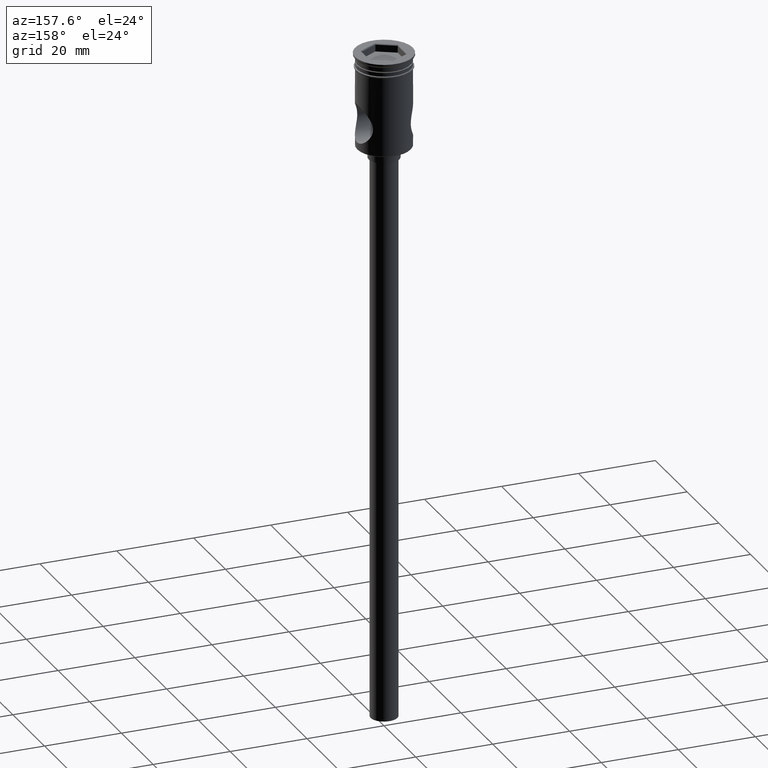
[diagram: clean part render]
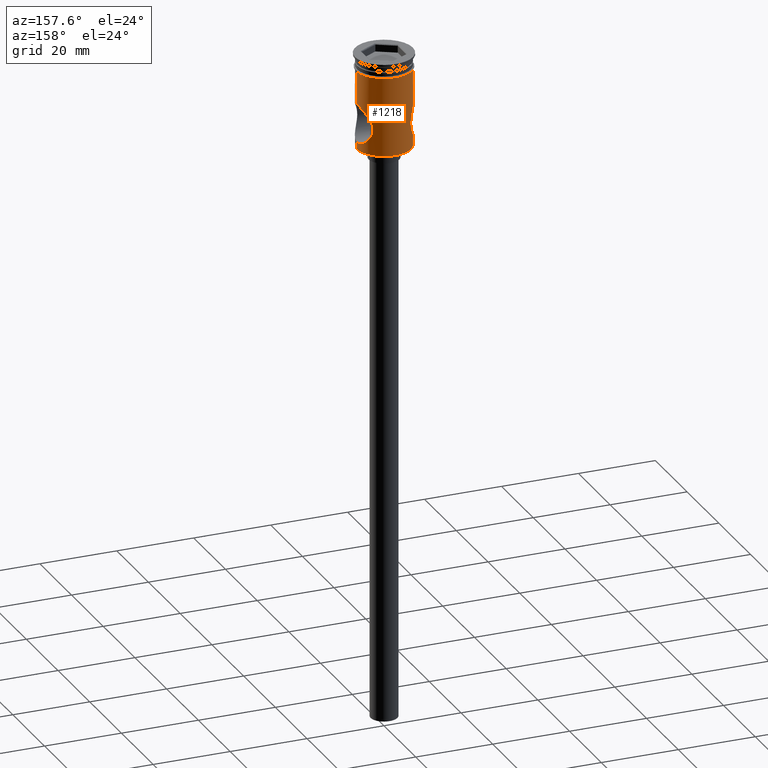
[diagram: same view with one face highlighted and labeled with its STEP entity id]
A machine part, auxiliary view. The second image highlights one B-rep face of the part: STEP entity #1218.
In plain terms, the highlighted cylindrical surface (edge-blend (fillet) strip) has radius 7 mm, axis along (-0, -0, 1).
Its self-contained STEP definition (entity closure, byte-faithful):
#4 = FACE_OUTER_BOUND ( 'NONE', #1489, .T. ) ;
#9 = CARTESIAN_POINT ( 'NONE',  ( 6.999999999999996447, 0.000000000000000000, -24.29999999999999361 ) ) ;
#38 = VERTEX_POINT ( 'NONE', #63 ) ;
#44 = CARTESIAN_POINT ( 'NONE',  ( 5.383875121910168815, 4.476817073581178086, -19.74995831670789670 ) ) ;
#53 = CARTESIAN_POINT ( 'NONE',  ( 4.899085609211874193, 4.999896020448773015, -17.32678303492929217 ) ) ;
#59 = CARTESIAN_POINT ( 'NONE',  ( 5.511313949235637999, 4.316828484673398414, -14.97205977871709415 ) ) ;
#60 = CARTESIAN_POINT ( 'NONE',  ( -5.508043593449563957, 4.325402544629331381, -14.97211645318934004 ) ) ;
#63 = CARTESIAN_POINT ( 'NONE',  ( 6.999999999999996447, -5.559544561199393959E-22, -12.50000000000000000 ) ) ;
#84 = LINE ( 'NONE', #403, #297 ) ;
#102 = CARTESIAN_POINT ( 'NONE',  ( -5.220660888952586731, 4.663868933387905535, -19.30946716320038448 ) ) ;
#110 = CARTESIAN_POINT ( 'NONE',  ( -6.878322084194203434, 1.341499001965813509, -22.32841954660989003 ) ) ;
#120 = CARTESIAN_POINT ( 'NONE',  ( 6.999999999999996447, 0.000000000000000000, 0.000000000000000000 ) ) ;
#129 = CARTESIAN_POINT ( 'NONE',  ( -6.999999999999996447, 8.572527594031468259E-16, 0.000000000000000000 ) ) ;
#137 = CARTESIAN_POINT ( 'NONE',  ( 6.999999999999996447, 0.000000000000000000, -22.50000000000000355 ) ) ;
#139 = ORIENTED_EDGE ( 'NONE', *, *, #478, .F. ) ;
#146 = CARTESIAN_POINT ( 'NONE',  ( 6.629274812495740576, 2.269772407451148055, -21.96723436692712994 ) ) ;
#153 = CARTESIAN_POINT ( 'NONE',  ( -6.999999999999999112, 0.3397238778479505505, -12.50000000000000533 ) ) ;
#170 = CARTESIAN_POINT ( 'NONE',  ( 5.035064757863625395, 4.863162860794926878, -18.67369050689208265 ) ) ;
#176 = CARTESIAN_POINT ( 'NONE',  ( 5.768304064841209389, 3.971660509004134809, -14.44639040140507724 ) ) ;
#184 = CARTESIAN_POINT ( 'NONE',  ( -5.900022963542600252, 3.775732323944060553, -14.20705562262494759 ) ) ;
#185 = B_SPLINE_CURVE_WITH_KNOTS ( 'NONE', 3,
 ( #256, #153, #1179, #500, #357, #1188, #246, #1069, #1104, #506, #277, #184, #535, #60, #410, #402, #1476, #204, #211, #1362, #1391, #338, #1042, #1031, #462, #1370, #102, #431, #1126, #1256, #1240, #698, #567, #191, #1149, #666, #110, #929, #897, #1117 ),
 .UNSPECIFIED., .F., .F.,
 ( 4, 2, 2, 2, 2, 2, 2, 2, 2, 2, 2, 2, 2, 2, 2, 2, 2, 2, 2, 4 ),
 ( 0.01628445435404881486, 0.01730075665134460025, 0.01831705894864038217, 0.01882521009728827660, 0.01933336124593617103, 0.02034966354323195642, 0.02136596584052773834, 0.02238226813782352373, 0.02339857043511930912, 0.02441487273241509451, 0.02492302388106299241, 0.02543117502971088684, 0.02593932617835878474, 0.02644747732700668263, 0.02746377962430248537, 0.02848008192159828811, 0.02949638421889409085, 0.03051268651618989358, 0.03152898881348569632, 0.03254529111078149906 ),
 .UNSPECIFIED. ) ;
#189 = DIRECTION ( 'NONE',  ( -0.000000000000000000, -0.000000000000000000, 1.000000000000000000 ) ) ;
#191 = CARTESIAN_POINT ( 'NONE',  ( -6.525356721813722949, 2.550056080968596373, -21.81267208194016760 ) ) ;
#195 = VERTEX_POINT ( 'NONE', #823 ) ;
#198 = DIRECTION ( 'NONE',  ( -0.000000000000000000, -0.000000000000000000, 1.000000000000000000 ) ) ;
#202 = CARTESIAN_POINT ( 'NONE',  ( 6.999999999999996447, 0.000000000000000000, 0.000000000000000000 ) ) ;
#204 = CARTESIAN_POINT ( 'NONE',  ( -4.934803760294868447, 4.965557229327412614, -16.82386648148100150 ) ) ;
#210 = CARTESIAN_POINT ( 'NONE',  ( -7.000000000000000000, 8.572527594031472204E-16, -3.799999999999998490 ) ) ;
#211 = CARTESIAN_POINT ( 'NONE',  ( -4.898713443770691178, 5.000260666815379729, -17.16047788894091752 ) ) ;
#216 = CARTESIAN_POINT ( 'NONE',  ( 0.000000000000000000, 0.000000000000000000, 0.000000000000000000 ) ) ;
#234 = EDGE_CURVE ( 'NONE', #919, #273, #185, .T. ) ;
#246 = CARTESIAN_POINT ( 'NONE',  ( -6.624517184282109561, 2.266908297124829108, -13.04044276553849002 ) ) ;
#256 = CARTESIAN_POINT ( 'NONE',  ( -6.999999999999996447, 8.572533153570467989E-16, -12.50000000000000000 ) ) ;
#261 = CARTESIAN_POINT ( 'NONE',  ( 5.507665137062537575, 4.325854713192930134, -20.02701862118371778 ) ) ;
#264 = EDGE_CURVE ( 'NONE', #38, #195, #1010, .T. ) ;
#273 = VERTEX_POINT ( 'NONE', #1015 ) ;
#277 = CARTESIAN_POINT ( 'NONE',  ( -6.161707611671310758, 3.331633962589205744, -13.75836233797496533 ) ) ;
#283 = CARTESIAN_POINT ( 'NONE',  ( 4.908080539807011533, 4.991127287266563961, -17.15741302911732546 ) ) ;
#289 = CARTESIAN_POINT ( 'NONE',  ( 6.806176255248581164, 1.666404458266062649, -12.77420545626974224 ) ) ;
#297 = VECTOR ( 'NONE', #991, 1000.000000000000000 ) ;
#321 = CIRCLE ( 'NONE', #1462, 6.999999999999999112 ) ;
#338 = CARTESIAN_POINT ( 'NONE',  ( -4.943863480480452210, 4.955687100658114019, -18.18552340350770891 ) ) ;
#344 = DIRECTION ( 'NONE',  ( -0.000000000000000000, -0.000000000000000000, 1.000000000000000000 ) ) ;
#357 = CARTESIAN_POINT ( 'NONE',  ( -6.806988922152785726, 1.662804102803706163, -12.77304955625404048 ) ) ;
#365 = CARTESIAN_POINT ( 'NONE',  ( 6.974683072853315124, 0.6817536040784990536, -22.46472792027995879 ) ) ;
#384 = CARTESIAN_POINT ( 'NONE',  ( 6.999999999999997335, 0.3402173002877514896, -12.50000000000000178 ) ) ;
#390 = ORIENTED_EDGE ( 'NONE', *, *, #264, .F. ) ;
#402 = CARTESIAN_POINT ( 'NONE',  ( -5.162336326394759922, 4.730545921691760469, -15.84900793347695647 ) ) ;
#403 = CARTESIAN_POINT ( 'NONE',  ( -6.999999999999996447, 8.572527594031468259E-16, 0.000000000000000000 ) ) ;
#410 = CARTESIAN_POINT ( 'NONE',  ( -5.381635726961874866, 4.479484118326246822, -15.25543733555521264 ) ) ;
#414 = CARTESIAN_POINT ( 'NONE',  ( 4.968992574149714514, 4.930653397323763620, -18.34649837096316460 ) ) ;
#431 = CARTESIAN_POINT ( 'NONE',  ( -5.385323867458159164, 4.475062125113562495, -19.75326393182406903 ) ) ;
#435 = DIRECTION ( 'NONE',  ( 1.000000000000000000, 0.000000000000000000, 0.000000000000000000 ) ) ;
#459 = DIRECTION ( 'NONE',  ( -0.000000000000000000, -0.000000000000000000, 1.000000000000000000 ) ) ;
#462 = CARTESIAN_POINT ( 'NONE',  ( -5.077364955457301932, 4.819225539182824924, -18.84248696074795149 ) ) ;
#468 = EDGE_CURVE ( 'NONE', #195, #1137, #321, .T. ) ;
#478 = EDGE_CURVE ( 'NONE', #684, #38, #724, .T. ) ;
#494 = ORIENTED_EDGE ( 'NONE', *, *, #656, .F. ) ;
#499 = CARTESIAN_POINT ( 'NONE',  ( 5.167013818061234609, 4.722976424013229035, -19.14947799901278813 ) ) ;
#500 = CARTESIAN_POINT ( 'NONE',  ( -6.877725454229275392, 1.345421322269137576, -12.67242512543099231 ) ) ;
#506 = CARTESIAN_POINT ( 'NONE',  ( -6.289754092268240449, 3.085829967940952656, -13.55283859579834527 ) ) ;
#512 = CARTESIAN_POINT ( 'NONE',  ( 6.627237468456898206, 2.276106889563763946, -13.03576710784931514 ) ) ;
#520 = CARTESIAN_POINT ( 'NONE',  ( 4.943019484790466045, 4.956528279916297741, -18.17978386182895179 ) ) ;
#535 = CARTESIAN_POINT ( 'NONE',  ( -5.766850669963372589, 3.973799787454027399, -14.44906282454845936 ) ) ;
#567 = CARTESIAN_POINT ( 'NONE',  ( -6.293637646572689093, 3.077855022031981580, -21.45331948693545954 ) ) ;
#588 = CARTESIAN_POINT ( 'NONE',  ( 6.999999999999996447, 0.000000000000000000, -22.50000000000000355 ) ) ;
#611 = ORIENTED_EDGE ( 'NONE', *, *, #1484, .T. ) ;
#612 = CARTESIAN_POINT ( 'NONE',  ( 6.162478002351688744, 3.330174978408510178, -21.24288214826860255 ) ) ;
#618 = CARTESIAN_POINT ( 'NONE',  ( 6.288925692808939871, 3.087718830034457795, -21.44587702701452514 ) ) ;
#637 = CARTESIAN_POINT ( 'NONE',  ( 4.943068801648156985, 4.956478286556077251, -16.82026444464511528 ) ) ;
#643 = CARTESIAN_POINT ( 'NONE',  ( 4.898875233353443548, 5.000102145928885911, -17.66716118737664232 ) ) ;
#652 = CARTESIAN_POINT ( 'NONE',  ( 5.163543367690774488, 4.729261221067855736, -15.84511468902912590 ) ) ;
#656 = EDGE_CURVE ( 'NONE', #1460, #684, #1236, .T. ) ;
#660 = CARTESIAN_POINT ( 'NONE',  ( 6.877389265331919077, 1.346411915329735587, -12.67290639567982424 ) ) ;
#666 = CARTESIAN_POINT ( 'NONE',  ( -6.805936086033878674, 1.666627172151767367, -22.22542051994379975 ) ) ;
#672 = ORIENTED_EDGE ( 'NONE', *, *, #833, .T. ) ;
#684 = VERTEX_POINT ( 'NONE', #137 ) ;
#698 = CARTESIAN_POINT ( 'NONE',  ( -6.165209272184617006, 3.325110483998857003, -21.24734997091469424 ) ) ;
#717 = CARTESIAN_POINT ( 'NONE',  ( 5.901369065369745037, 3.773598239158957757, -20.79532828289721635 ) ) ;
#724 = B_SPLINE_CURVE_WITH_KNOTS ( 'NONE', 3,
 ( #588, #1419, #365, #848, #732, #146, #1291, #618, #612, #717, #1311, #261, #44, #1195, #499, #875, #170, #414, #520, #1094, #643, #53, #283, #637, #1090, #1318, #652, #971, #1438, #59, #1442, #176, #754, #1342, #1347, #1084, #512, #289, #660, #997, #384, #977 ),
 .UNSPECIFIED., .F., .F.,
 ( 4, 2, 2, 2, 2, 2, 2, 2, 2, 2, 2, 2, 2, 2, 2, 2, 2, 2, 2, 2, 4 ),
 ( 0.000000000000000000, 0.001017778397128055699, 0.002035556794256111399, 0.003053335191384167098, 0.004071113588512222797, 0.005088891985640278497, 0.006106670382768334196, 0.006615559581332362479, 0.007124448779896391630, 0.007633337978460419913, 0.008142227177024449064, 0.008651116375588475613, 0.009160005574152505631, 0.01017778397128055352, 0.01068667316984457834, 0.01119556236840860142, 0.01221334076553664411, 0.01323111916266468679, 0.01424889755979273122, 0.01526667595692077217, 0.01628445435404881486 ),
 .UNSPECIFIED. ) ;
#732 = CARTESIAN_POINT ( 'NONE',  ( 6.806291652246979851, 1.665396429013261459, -22.22593952615893897 ) ) ;
#737 = CARTESIAN_POINT ( 'NONE',  ( 0.000000000000000000, 0.000000000000000000, -3.799999999999998490 ) ) ;
#741 = LINE ( 'NONE', #129, #1464 ) ;
#750 = VECTOR ( 'NONE', #198, 1000.000000000000000 ) ;
#752 = VECTOR ( 'NONE', #189, 1000.000000000000000 ) ;
#754 = CARTESIAN_POINT ( 'NONE',  ( 5.901355755354761534, 3.773686748851627915, -14.20466136214932007 ) ) ;
#809 = CYLINDRICAL_SURFACE ( 'NONE', #1332, 6.999999999999996447 ) ;
#823 = CARTESIAN_POINT ( 'NONE',  ( 6.999999999999999112, 0.000000000000000000, -3.799999999999998490 ) ) ;
#833 = EDGE_CURVE ( 'NONE', #1460, #1235, #1281, .T. ) ;
#848 = CARTESIAN_POINT ( 'NONE',  ( 6.878409767648492767, 1.341070845160087455, -22.32854432384573684 ) ) ;
#875 = CARTESIAN_POINT ( 'NONE',  ( 5.075160898063482584, 4.821543316883922792, -18.83416791088078668 ) ) ;
#897 = CARTESIAN_POINT ( 'NONE',  ( -6.999999999999995559, 0.3443248772558980542, -22.50000000000000000 ) ) ;
#911 = CARTESIAN_POINT ( 'NONE',  ( -6.999999999999996447, 8.572527594031468259E-16, -24.29999999999999361 ) ) ;
#919 = VERTEX_POINT ( 'NONE', #926 ) ;
#926 = CARTESIAN_POINT ( 'NONE',  ( -6.999999999999996447, 8.572533153570467989E-16, -12.50000000000000000 ) ) ;
#929 = CARTESIAN_POINT ( 'NONE',  ( -6.974619610468724140, 0.6823602827348922428, -22.46463889269961456 ) ) ;
#966 = DIRECTION ( 'NONE',  ( -0.000000000000000000, -0.000000000000000000, 1.000000000000000000 ) ) ;
#971 = CARTESIAN_POINT ( 'NONE',  ( 5.328862411543377142, 4.539851137495588773, -15.39859786766767336 ) ) ;
#977 = CARTESIAN_POINT ( 'NONE',  ( 6.999999999999996447, -5.559544561199393959E-22, -12.50000000000000000 ) ) ;
#991 = DIRECTION ( 'NONE',  ( -0.000000000000000000, -0.000000000000000000, 1.000000000000000000 ) ) ;
#997 = CARTESIAN_POINT ( 'NONE',  ( 6.974267267734871822, 0.6862246212768641218, -12.53585319719852720 ) ) ;
#1002 = DIRECTION ( 'NONE',  ( -0.000000000000000000, -0.000000000000000000, 1.000000000000000000 ) ) ;
#1010 = LINE ( 'NONE', #120, #750 ) ;
#1014 = ORIENTED_EDGE ( 'NONE', *, *, #234, .F. ) ;
#1015 = CARTESIAN_POINT ( 'NONE',  ( -6.999999999999996447, 0.000000000000000000, -22.50000000000000355 ) ) ;
#1024 = DIRECTION ( 'NONE',  ( -1.000000000000000000, 0.000000000000000000, 0.000000000000000000 ) ) ;
#1031 = CARTESIAN_POINT ( 'NONE',  ( -5.036472174957491887, 4.861708977790190289, -18.67976090952791779 ) ) ;
#1032 = AXIS2_PLACEMENT_3D ( 'NONE', #1136, #1002, #1024 ) ;
#1042 = CARTESIAN_POINT ( 'NONE',  ( -4.969884412147624886, 4.929758116149196567, -18.35178336719908287 ) ) ;
#1069 = CARTESIAN_POINT ( 'NONE',  ( -6.519877710032068840, 2.552311853721904278, -13.19741610699314016 ) ) ;
#1084 = CARTESIAN_POINT ( 'NONE',  ( 6.522179950175094554, 2.558034936992928277, -13.19213903168321522 ) ) ;
#1090 = CARTESIAN_POINT ( 'NONE',  ( 4.969341922738349737, 4.930306376958238701, -16.65122617411555339 ) ) ;
#1094 = CARTESIAN_POINT ( 'NONE',  ( 4.907798977527274786, 4.991404953799127853, -17.83934536331389609 ) ) ;
#1104 = CARTESIAN_POINT ( 'NONE',  ( -6.464316942199904936, 2.689506414539494905, -13.28192429162108112 ) ) ;
#1117 = CARTESIAN_POINT ( 'NONE',  ( -6.999999999999996447, 0.000000000000000000, -22.50000000000000355 ) ) ;
#1126 = CARTESIAN_POINT ( 'NONE',  ( -5.510292512720397440, 4.322635034373780272, -20.03289028278534190 ) ) ;
#1136 = CARTESIAN_POINT ( 'NONE',  ( 0.000000000000000000, 0.000000000000000000, -24.29999999999999361 ) ) ;
#1137 = VERTEX_POINT ( 'NONE', #210 ) ;
#1149 = CARTESIAN_POINT ( 'NONE',  ( -6.629571276977945793, 2.268743445522608759, -21.96766699740016193 ) ) ;
#1179 = CARTESIAN_POINT ( 'NONE',  ( -6.975075911005133023, 0.6793982586713426253, -12.53471494170770306 ) ) ;
#1186 = DIRECTION ( 'NONE',  ( 1.000000000000000000, 0.000000000000000000, 0.000000000000000000 ) ) ;
#1188 = CARTESIAN_POINT ( 'NONE',  ( -6.673734349475702210, 2.118082564557161263, -12.96778522737479733 ) ) ;
#1195 = CARTESIAN_POINT ( 'NONE',  ( 5.218822708204850613, 4.665928648188177874, -19.30420640014511591 ) ) ;
#1218 = ADVANCED_FACE ( 'NONE', ( #4 ), #809, .T. ) ;
#1235 = VERTEX_POINT ( 'NONE', #911 ) ;
#1236 = LINE ( 'NONE', #202, #752 ) ;
#1240 = CARTESIAN_POINT ( 'NONE',  ( -5.904538784229269588, 3.768631959499706863, -20.80097026480864031 ) ) ;
#1256 = CARTESIAN_POINT ( 'NONE',  ( -5.771108096911676810, 3.967720825599827972, -20.55906820373875732 ) ) ;
#1281 = CIRCLE ( 'NONE', #1032, 6.999999999999996447 ) ;
#1291 = CARTESIAN_POINT ( 'NONE',  ( 6.523396179854662691, 2.555366162349213877, -21.80976297051136470 ) ) ;
#1311 = CARTESIAN_POINT ( 'NONE',  ( 5.765831995741617533, 3.975245358282917696, -20.54897793578650678 ) ) ;
#1318 = CARTESIAN_POINT ( 'NONE',  ( 5.069539922197811244, 4.827927654831068338, -16.15669568881665441 ) ) ;
#1332 = AXIS2_PLACEMENT_3D ( 'NONE', #216, #459, #435 ) ;
#1335 = ORIENTED_EDGE ( 'NONE', *, *, #1452, .T. ) ;
#1342 = CARTESIAN_POINT ( 'NONE',  ( 6.163412594259888522, 3.328521687271349894, -13.75554919995812675 ) ) ;
#1347 = CARTESIAN_POINT ( 'NONE',  ( 6.290874603390947506, 3.083386249848239835, -13.55108393410666956 ) ) ;
#1358 = ORIENTED_EDGE ( 'NONE', *, *, #468, .F. ) ;
#1362 = CARTESIAN_POINT ( 'NONE',  ( -4.899114737268973840, 4.999867480858277702, -17.67548696206737446 ) ) ;
#1370 = CARTESIAN_POINT ( 'NONE',  ( -5.169488514657019529, 4.720270986420918469, -19.15718069384215738 ) ) ;
#1391 = CARTESIAN_POINT ( 'NONE',  ( -4.908461367085028115, 4.990754227678548816, -17.84806495844127383 ) ) ;
#1419 = CARTESIAN_POINT ( 'NONE',  ( 6.999999999999996447, 0.3448249822885355309, -22.50000000000000355 ) ) ;
#1438 = CARTESIAN_POINT ( 'NONE',  ( 5.388400174924766084, 4.469310144529878848, -15.25261112388847806 ) ) ;
#1442 = CARTESIAN_POINT ( 'NONE',  ( 5.574789878013862499, 4.234804902448966679, -14.83709141481580396 ) ) ;
#1452 = EDGE_CURVE ( 'NONE', #1235, #273, #84, .T. ) ;
#1460 = VERTEX_POINT ( 'NONE', #9 ) ;
#1462 = AXIS2_PLACEMENT_3D ( 'NONE', #737, #966, #1186 ) ;
#1464 = VECTOR ( 'NONE', #344, 1000.000000000000000 ) ;
#1476 = CARTESIAN_POINT ( 'NONE',  ( -5.067898708447169831, 4.829642785058294585, -16.16266470123420618 ) ) ;
#1484 = EDGE_CURVE ( 'NONE', #919, #1137, #741, .T. ) ;
#1489 = EDGE_LOOP ( 'NONE', ( #672, #1335, #1014, #611, #1358, #390, #139, #494 ) ) ;